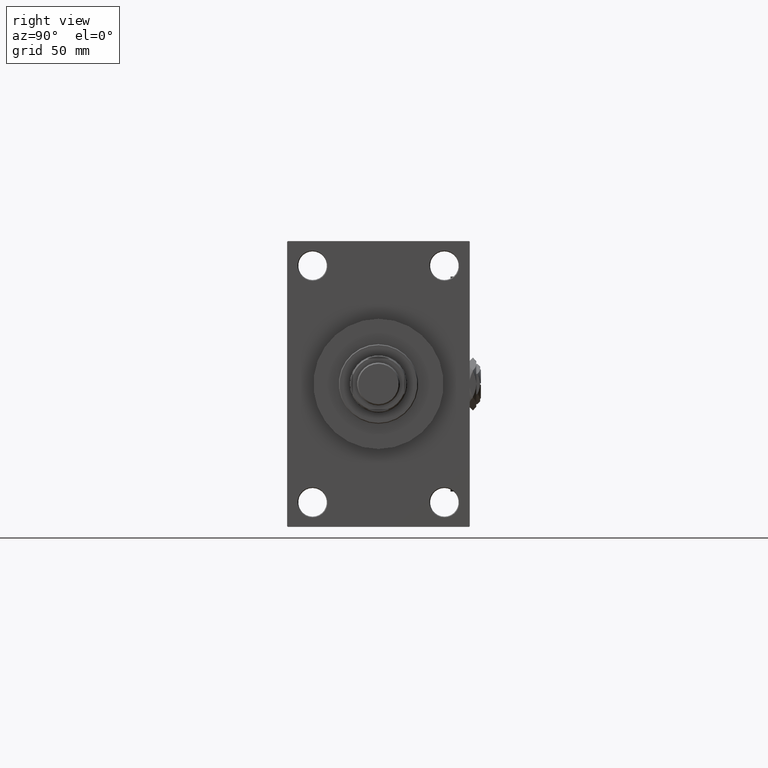
[diagram: clean part render]
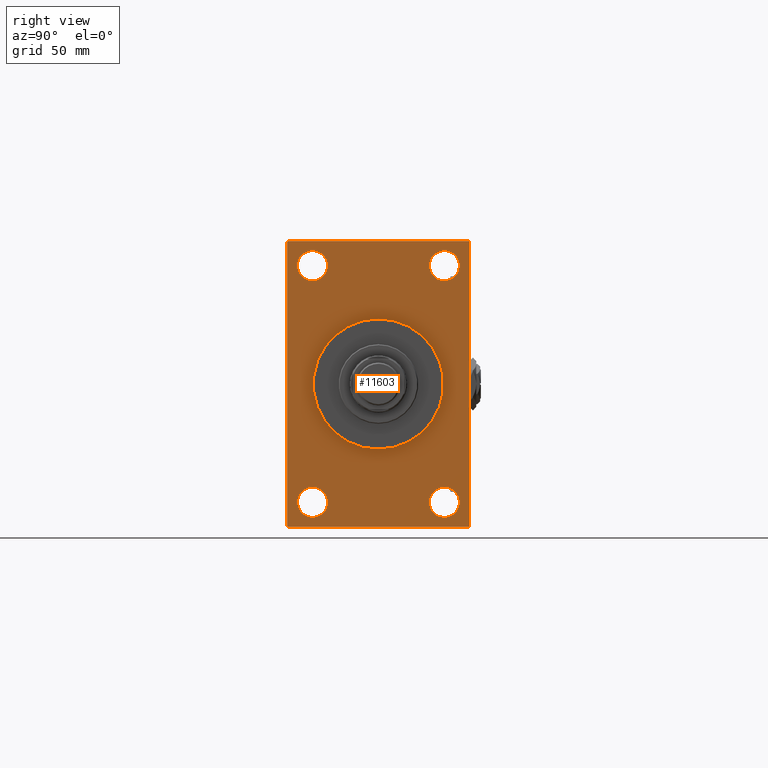
[diagram: same view with one face highlighted and labeled with its STEP entity id]
A machine part, right view. The second image highlights one B-rep face of the part: STEP entity #11603.
In plain terms, the highlighted planar face has unit normal (-1, 0, 0).
Its self-contained STEP definition (entity closure, byte-faithful):
#204 = FACE_OUTER_BOUND ( 'NONE', #28246, .T. ) ;
#453 = VERTEX_POINT ( 'NONE', #48705 ) ;
#736 = FACE_BOUND ( 'NONE', #23924, .T. ) ;
#871 = DIRECTION ( 'NONE',  ( 1.000000000000000000, 0.000000000000000000, 0.000000000000000000 ) ) ;
#2378 = CARTESIAN_POINT ( 'NONE',  ( 299.0000000000000000, 41.50000000000000711, 74.50000000000001421 ) ) ;
#3118 = AXIS2_PLACEMENT_3D ( 'NONE', #5219, #29608, #36792 ) ;
#4446 = CARTESIAN_POINT ( 'NONE',  ( 299.0000000000000000, 5.021051876504148963E-15, -41.00000000000000000 ) ) ;
#5084 = CARTESIAN_POINT ( 'NONE',  ( 299.0000000000000000, 41.50000000000000711, 74.50000000000001421 ) ) ;
#5219 = CARTESIAN_POINT ( 'NONE',  ( 299.0000000000000000, 41.50000000000000711, -74.50000000000000000 ) ) ;
#5311 = ORIENTED_EDGE ( 'NONE', *, *, #6090, .T. ) ;
#5692 = CARTESIAN_POINT ( 'NONE',  ( 299.0000000000000000, -57.00000000000001421, 89.99999999999997158 ) ) ;
#6090 = EDGE_CURVE ( 'NONE', #51396, #44502, #27968, .T. ) ;
#6718 = CARTESIAN_POINT ( 'NONE',  ( 299.0000000000000000, -41.49999999999999289, 84.00000000000001421 ) ) ;
#7361 = VERTEX_POINT ( 'NONE', #6718 ) ;
#7731 = CARTESIAN_POINT ( 'NONE',  ( 299.0000000000000000, -41.49999999999999289, 74.50000000000001421 ) ) ;
#7871 = CARTESIAN_POINT ( 'NONE',  ( 299.0000000000000000, 0.000000000000000000, 0.000000000000000000 ) ) ;
#8982 = AXIS2_PLACEMENT_3D ( 'NONE', #36068, #12170, #12712 ) ;
#9412 = VERTEX_POINT ( 'NONE', #32390 ) ;
#9661 = AXIS2_PLACEMENT_3D ( 'NONE', #28704, #871, #44906 ) ;
#9671 = EDGE_CURVE ( 'NONE', #35317, #25396, #43792, .T. ) ;
#9804 = VERTEX_POINT ( 'NONE', #19603 ) ;
#9853 = EDGE_CURVE ( 'NONE', #52010, #41915, #52150, .T. ) ;
#9926 = EDGE_LOOP ( 'NONE', ( #30767, #52477 ) ) ;
#10119 = DIRECTION ( 'NONE',  ( 0.000000000000000000, 0.000000000000000000, 1.000000000000000000 ) ) ;
#10166 = EDGE_CURVE ( 'NONE', #25396, #35317, #32648, .T. ) ;
#10568 = EDGE_CURVE ( 'NONE', #10851, #22177, #10676, .T. ) ;
#10676 = CIRCLE ( 'NONE', #8982, 9.500000000000008882 ) ;
#10851 = VERTEX_POINT ( 'NONE', #19807 ) ;
#11129 = DIRECTION ( 'NONE',  ( 0.000000000000000000, 0.000000000000000000, 1.000000000000000000 ) ) ;
#11298 = VERTEX_POINT ( 'NONE', #39338 ) ;
#11304 = ORIENTED_EDGE ( 'NONE', *, *, #9853, .T. ) ;
#11603 = ADVANCED_FACE ( 'NONE', ( #736, #25110, #44239, #28571, #44774, #204 ), #24841, .F. ) ;
#12170 = DIRECTION ( 'NONE',  ( -1.000000000000000000, 0.000000000000000000, -0.000000000000000000 ) ) ;
#12478 = LINE ( 'NONE', #25453, #46355 ) ;
#12712 = DIRECTION ( 'NONE',  ( 0.000000000000000000, 0.000000000000000000, 1.000000000000000000 ) ) ;
#13430 = LINE ( 'NONE', #45808, #45673 ) ;
#13585 = VECTOR ( 'NONE', #24850, 1000.000000000000000 ) ;
#14006 = AXIS2_PLACEMENT_3D ( 'NONE', #2378, #15877, #35524 ) ;
#14608 = EDGE_LOOP ( 'NONE', ( #37731, #11304 ) ) ;
#14930 = DIRECTION ( 'NONE',  ( 0.000000000000000000, 0.000000000000000000, -1.000000000000000000 ) ) ;
#15101 = DIRECTION ( 'NONE',  ( -1.000000000000000000, 0.000000000000000000, -0.000000000000000000 ) ) ;
#15877 = DIRECTION ( 'NONE',  ( -1.000000000000000000, 0.000000000000000000, -0.000000000000000000 ) ) ;
#16097 = ORIENTED_EDGE ( 'NONE', *, *, #31230, .F. ) ;
#16103 = CARTESIAN_POINT ( 'NONE',  ( 299.0000000000000000, 41.50000000000000711, -64.99999999999998579 ) ) ;
#16143 = DIRECTION ( 'NONE',  ( 0.000000000000000000, 0.000000000000000000, 1.000000000000000000 ) ) ;
#16672 = DIRECTION ( 'NONE',  ( -1.000000000000000000, 0.000000000000000000, -0.000000000000000000 ) ) ;
#16962 = ORIENTED_EDGE ( 'NONE', *, *, #10568, .T. ) ;
#17459 = CIRCLE ( 'NONE', #41188, 9.500000000000008882 ) ;
#17831 = CARTESIAN_POINT ( 'NONE',  ( 299.0000000000000000, -41.49999999999999289, -74.49999999999998579 ) ) ;
#18475 = ORIENTED_EDGE ( 'NONE', *, *, #42990, .T. ) ;
#19307 = VECTOR ( 'NONE', #38405, 1000.000000000000114 ) ;
#19603 = CARTESIAN_POINT ( 'NONE',  ( 299.0000000000000000, 57.49999999999997158, 89.49999999999992895 ) ) ;
#19807 = CARTESIAN_POINT ( 'NONE',  ( 299.0000000000000000, 41.50000000000000711, -84.00000000000000000 ) ) ;
#20163 = AXIS2_PLACEMENT_3D ( 'NONE', #27030, #47211, #31551 ) ;
#20217 = CARTESIAN_POINT ( 'NONE',  ( 299.0000000000000000, 56.99999999999992895, -90.00000000000000000 ) ) ;
#20454 = DIRECTION ( 'NONE',  ( 0.000000000000000000, 0.000000000000000000, 1.000000000000000000 ) ) ;
#20465 = DIRECTION ( 'NONE',  ( 0.000000000000000000, 0.000000000000000000, 1.000000000000000000 ) ) ;
#21143 = VERTEX_POINT ( 'NONE', #37228 ) ;
#21655 = ORIENTED_EDGE ( 'NONE', *, *, #43007, .F. ) ;
#22177 = VERTEX_POINT ( 'NONE', #16103 ) ;
#23340 = ORIENTED_EDGE ( 'NONE', *, *, #48186, .T. ) ;
#23579 = EDGE_CURVE ( 'NONE', #44502, #48444, #26341, .T. ) ;
#23718 = VECTOR ( 'NONE', #14930, 1000.000000000000000 ) ;
#23924 = EDGE_LOOP ( 'NONE', ( #34738, #39288 ) ) ;
#24084 = DIRECTION ( 'NONE',  ( -0.000000000000000000, 0.7071067811865574537, 0.7071067811865376918 ) ) ;
#24841 = PLANE ( 'NONE',  #26788 ) ;
#24850 = DIRECTION ( 'NONE',  ( -0.000000000000000000, -0.7071067811865131558, -0.7071067811865818786 ) ) ;
#25110 = FACE_BOUND ( 'NONE', #14608, .T. ) ;
#25396 = VERTEX_POINT ( 'NONE', #44195 ) ;
#25453 = CARTESIAN_POINT ( 'NONE',  ( 299.0000000000000000, 57.49999999999997868, -90.00000000000000000 ) ) ;
#25838 = EDGE_CURVE ( 'NONE', #41915, #52010, #45886, .T. ) ;
#26341 = LINE ( 'NONE', #45052, #13585 ) ;
#26788 = AXIS2_PLACEMENT_3D ( 'NONE', #7871, #37070, #28839 ) ;
#27030 = CARTESIAN_POINT ( 'NONE',  ( 299.0000000000000000, 0.000000000000000000, 0.000000000000000000 ) ) ;
#27673 = CIRCLE ( 'NONE', #3118, 9.500000000000008882 ) ;
#27968 = LINE ( 'NONE', #44166, #36016 ) ;
#28078 = LINE ( 'NONE', #40038, #41265 ) ;
#28160 = DIRECTION ( 'NONE',  ( -1.000000000000000000, 0.000000000000000000, -0.000000000000000000 ) ) ;
#28246 = EDGE_LOOP ( 'NONE', ( #36319, #23340, #38495, #36029, #21655, #18475, #5311, #36470 ) ) ;
#28571 = FACE_BOUND ( 'NONE', #9926, .T. ) ;
#28704 = CARTESIAN_POINT ( 'NONE',  ( 299.0000000000000000, 0.000000000000000000, 0.000000000000000000 ) ) ;
#28762 = CARTESIAN_POINT ( 'NONE',  ( 299.0000000000000000, 41.50000000000000711, 84.00000000000001421 ) ) ;
#28839 = DIRECTION ( 'NONE',  ( -0.000000000000000000, 0.000000000000000000, 1.000000000000000000 ) ) ;
#29582 = CARTESIAN_POINT ( 'NONE',  ( 299.0000000000000000, -57.00000000000002132, -90.00000000000001421 ) ) ;
#29608 = DIRECTION ( 'NONE',  ( -1.000000000000000000, 0.000000000000000000, -0.000000000000000000 ) ) ;
#30445 = CARTESIAN_POINT ( 'NONE',  ( 299.0000000000000000, 56.99999999999992184, 89.99999999999998579 ) ) ;
#30767 = ORIENTED_EDGE ( 'NONE', *, *, #10166, .T. ) ;
#31230 = EDGE_CURVE ( 'NONE', #48905, #11298, #42681, .T. ) ;
#31551 = DIRECTION ( 'NONE',  ( 0.000000000000000000, 0.000000000000000000, -1.000000000000000000 ) ) ;
#31815 = CARTESIAN_POINT ( 'NONE',  ( 299.0000000000000000, -41.49999999999999289, 74.50000000000001421 ) ) ;
#32390 = CARTESIAN_POINT ( 'NONE',  ( 299.0000000000000000, 57.49999999999997868, -89.49999999999990052 ) ) ;
#32648 = CIRCLE ( 'NONE', #46328, 9.500000000000008882 ) ;
#32717 = VERTEX_POINT ( 'NONE', #29582 ) ;
#33276 = CARTESIAN_POINT ( 'NONE',  ( 299.0000000000000000, -57.50000000000002132, 89.49999999999991473 ) ) ;
#33529 = AXIS2_PLACEMENT_3D ( 'NONE', #40307, #16672, #16143 ) ;
#33751 = CIRCLE ( 'NONE', #37987, 9.500000000000008882 ) ;
#34696 = CARTESIAN_POINT ( 'NONE',  ( 299.0000000000000000, 57.49999999999997158, 89.99999999999998579 ) ) ;
#34738 = ORIENTED_EDGE ( 'NONE', *, *, #46919, .T. ) ;
#34846 = CARTESIAN_POINT ( 'NONE',  ( 299.0000000000000000, 56.99999999999992184, 89.99999999999998579 ) ) ;
#34948 = DIRECTION ( 'NONE',  ( 0.000000000000000000, 3.854941057726238467E-17, -1.000000000000000000 ) ) ;
#35268 = ORIENTED_EDGE ( 'NONE', *, *, #46861, .F. ) ;
#35317 = VERTEX_POINT ( 'NONE', #28762 ) ;
#35524 = DIRECTION ( 'NONE',  ( 0.000000000000000000, 0.000000000000000000, 1.000000000000000000 ) ) ;
#36016 = VECTOR ( 'NONE', #36200, 1000.000000000000000 ) ;
#36029 = ORIENTED_EDGE ( 'NONE', *, *, #41260, .T. ) ;
#36068 = CARTESIAN_POINT ( 'NONE',  ( 299.0000000000000000, 41.50000000000000711, -74.50000000000000000 ) ) ;
#36200 = DIRECTION ( 'NONE',  ( 0.000000000000000000, -1.000000000000000000, -1.206764157201257291E-16 ) ) ;
#36319 = ORIENTED_EDGE ( 'NONE', *, *, #51385, .T. ) ;
#36470 = ORIENTED_EDGE ( 'NONE', *, *, #23579, .T. ) ;
#36554 = CARTESIAN_POINT ( 'NONE',  ( 299.0000000000000000, -41.49999999999999289, -65.00000000000002842 ) ) ;
#36792 = DIRECTION ( 'NONE',  ( 0.000000000000000000, 0.000000000000000000, 1.000000000000000000 ) ) ;
#37070 = DIRECTION ( 'NONE',  ( -1.000000000000000000, 0.000000000000000000, -0.000000000000000000 ) ) ;
#37228 = CARTESIAN_POINT ( 'NONE',  ( 299.0000000000000000, -57.50000000000002132, -89.49999999999997158 ) ) ;
#37731 = ORIENTED_EDGE ( 'NONE', *, *, #25838, .T. ) ;
#37987 = AXIS2_PLACEMENT_3D ( 'NONE', #31815, #15101, #11129 ) ;
#38405 = DIRECTION ( 'NONE',  ( 0.000000000000000000, -0.7071067811865474617, 0.7071067811865474617 ) ) ;
#38495 = ORIENTED_EDGE ( 'NONE', *, *, #41737, .F. ) ;
#38801 = EDGE_CURVE ( 'NONE', #7361, #453, #17459, .T. ) ;
#38940 = LINE ( 'NONE', #30445, #19307 ) ;
#39288 = ORIENTED_EDGE ( 'NONE', *, *, #38801, .T. ) ;
#39338 = CARTESIAN_POINT ( 'NONE',  ( 299.0000000000000000, 0.000000000000000000, 41.00000000000000000 ) ) ;
#40038 = CARTESIAN_POINT ( 'NONE',  ( 299.0000000000000000, 57.49999999999997868, -89.49999999999995737 ) ) ;
#40307 = CARTESIAN_POINT ( 'NONE',  ( 299.0000000000000000, -41.49999999999999289, -74.49999999999998579 ) ) ;
#40587 = EDGE_LOOP ( 'NONE', ( #35268, #16097 ) ) ;
#40671 = EDGE_CURVE ( 'NONE', #22177, #10851, #27673, .T. ) ;
#41188 = AXIS2_PLACEMENT_3D ( 'NONE', #7731, #44619, #20454 ) ;
#41260 = EDGE_CURVE ( 'NONE', #51429, #9412, #28078, .T. ) ;
#41265 = VECTOR ( 'NONE', #24084, 999.9999999999998863 ) ;
#41413 = DIRECTION ( 'NONE',  ( 0.000000000000000000, -1.000000000000000000, -1.206764157201257045E-16 ) ) ;
#41737 = EDGE_CURVE ( 'NONE', #51429, #32717, #12478, .T. ) ;
#41915 = VERTEX_POINT ( 'NONE', #52231 ) ;
#41985 = DIRECTION ( 'NONE',  ( -1.000000000000000000, 0.000000000000000000, -0.000000000000000000 ) ) ;
#42681 = CIRCLE ( 'NONE', #9661, 41.00000000000000000 ) ;
#42990 = EDGE_CURVE ( 'NONE', #9804, #51396, #38940, .T. ) ;
#43007 = EDGE_CURVE ( 'NONE', #9804, #9412, #50881, .T. ) ;
#43069 = CARTESIAN_POINT ( 'NONE',  ( 299.0000000000000000, -57.50000000000002132, 89.99999999999997158 ) ) ;
#43792 = CIRCLE ( 'NONE', #14006, 9.500000000000008882 ) ;
#43859 = VECTOR ( 'NONE', #34948, 1000.000000000000000 ) ;
#44166 = CARTESIAN_POINT ( 'NONE',  ( 299.0000000000000000, 57.49999999999997158, 89.99999999999998579 ) ) ;
#44195 = CARTESIAN_POINT ( 'NONE',  ( 299.0000000000000000, 41.50000000000000711, 65.00000000000000000 ) ) ;
#44239 = FACE_BOUND ( 'NONE', #48306, .T. ) ;
#44502 = VERTEX_POINT ( 'NONE', #5692 ) ;
#44619 = DIRECTION ( 'NONE',  ( -1.000000000000000000, 0.000000000000000000, -0.000000000000000000 ) ) ;
#44774 = FACE_BOUND ( 'NONE', #40587, .T. ) ;
#44906 = DIRECTION ( 'NONE',  ( 0.000000000000000000, 0.000000000000000000, -1.000000000000000000 ) ) ;
#45052 = CARTESIAN_POINT ( 'NONE',  ( 299.0000000000000000, -57.50000000000002132, 89.49999999999991473 ) ) ;
#45673 = VECTOR ( 'NONE', #46583, 1000.000000000000000 ) ;
#45681 = ORIENTED_EDGE ( 'NONE', *, *, #40671, .T. ) ;
#45808 = CARTESIAN_POINT ( 'NONE',  ( 299.0000000000000000, -57.00000000000002132, -90.00000000000001421 ) ) ;
#45886 = CIRCLE ( 'NONE', #46718, 9.499999999999953815 ) ;
#46328 = AXIS2_PLACEMENT_3D ( 'NONE', #5084, #28160, #20465 ) ;
#46355 = VECTOR ( 'NONE', #41413, 1000.000000000000000 ) ;
#46583 = DIRECTION ( 'NONE',  ( 0.000000000000000000, 0.7071067811865573427, -0.7071067811865378028 ) ) ;
#46718 = AXIS2_PLACEMENT_3D ( 'NONE', #17831, #41985, #10119 ) ;
#46861 = EDGE_CURVE ( 'NONE', #11298, #48905, #49961, .T. ) ;
#46919 = EDGE_CURVE ( 'NONE', #453, #7361, #33751, .T. ) ;
#47211 = DIRECTION ( 'NONE',  ( 1.000000000000000000, 0.000000000000000000, 0.000000000000000000 ) ) ;
#47562 = LINE ( 'NONE', #43069, #23718 ) ;
#48186 = EDGE_CURVE ( 'NONE', #21143, #32717, #13430, .T. ) ;
#48306 = EDGE_LOOP ( 'NONE', ( #16962, #45681 ) ) ;
#48444 = VERTEX_POINT ( 'NONE', #33276 ) ;
#48705 = CARTESIAN_POINT ( 'NONE',  ( 299.0000000000000000, -41.49999999999999289, 65.00000000000000000 ) ) ;
#48905 = VERTEX_POINT ( 'NONE', #4446 ) ;
#49961 = CIRCLE ( 'NONE', #20163, 41.00000000000000000 ) ;
#50881 = LINE ( 'NONE', #34696, #43859 ) ;
#51385 = EDGE_CURVE ( 'NONE', #48444, #21143, #47562, .T. ) ;
#51396 = VERTEX_POINT ( 'NONE', #34846 ) ;
#51429 = VERTEX_POINT ( 'NONE', #20217 ) ;
#52010 = VERTEX_POINT ( 'NONE', #36554 ) ;
#52150 = CIRCLE ( 'NONE', #33529, 9.499999999999953815 ) ;
#52231 = CARTESIAN_POINT ( 'NONE',  ( 299.0000000000000000, -41.49999999999999289, -83.99999999999992895 ) ) ;
#52477 = ORIENTED_EDGE ( 'NONE', *, *, #9671, .T. ) ;